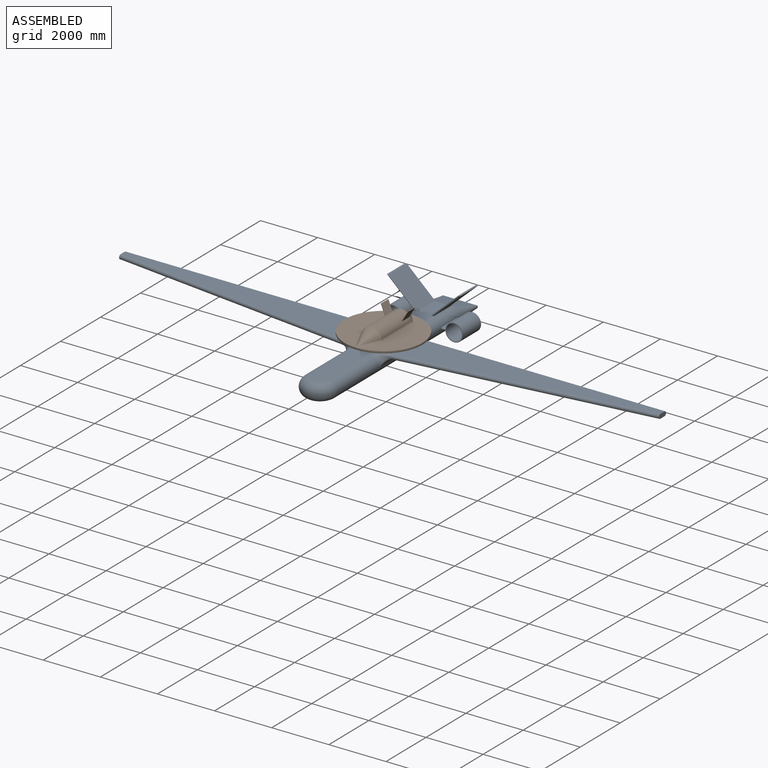
[diagram: assembled view]
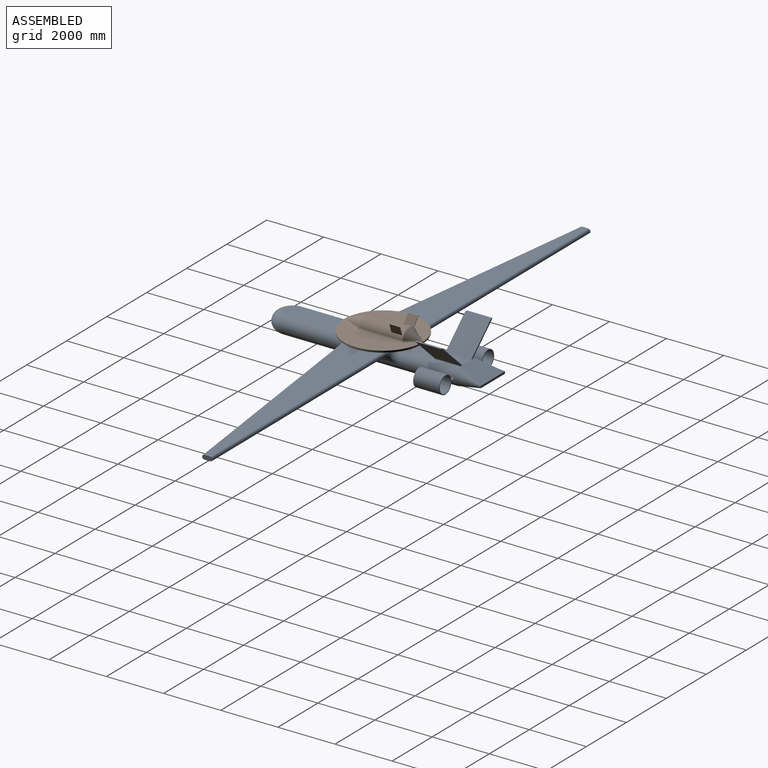
[diagram: assembled view, second angle]
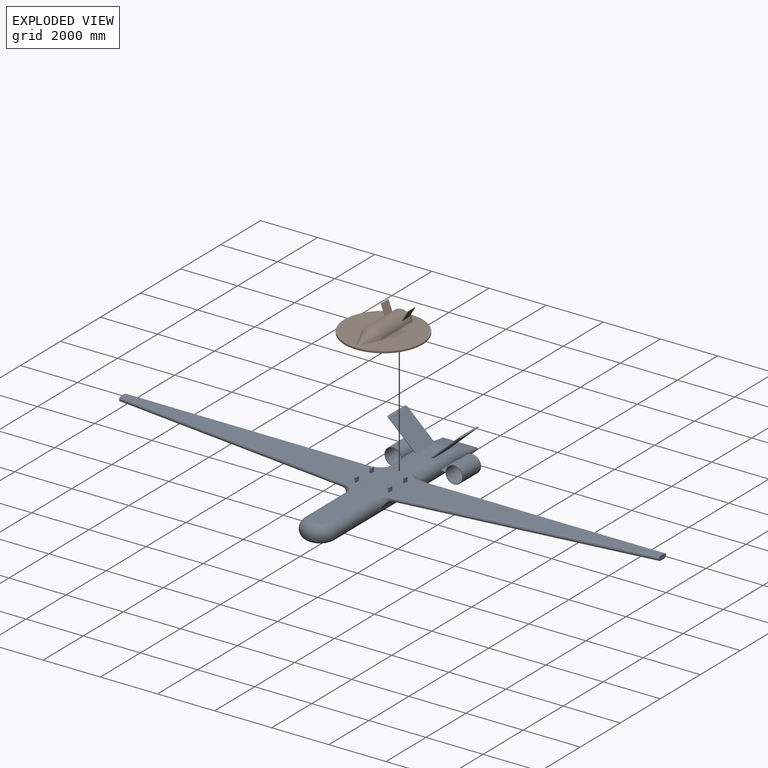
[diagram: exploded view]
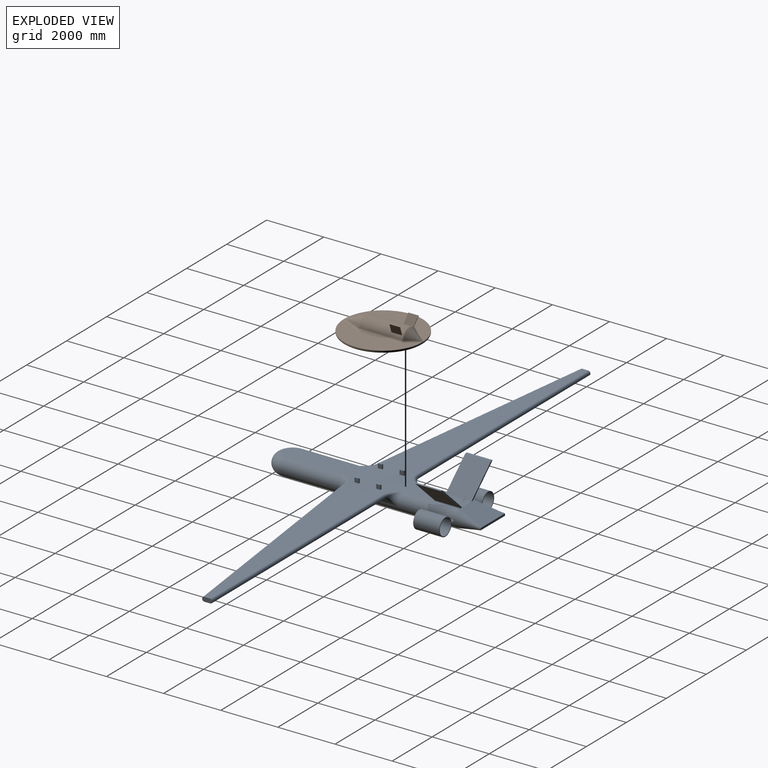
[diagram: exploded view, second angle]
ASSEMBLY  parts=2 mates=2
PART A: 108 faces, bbox 18996.2x7749.6x1675.7 mm
  f0: plane 18976.99x6480.19mm, normal (0,0,1), area 18372709.7mm2, adj f1,f3,f4,f8,f10,f14,f22,f23
  f1: cylinder r=304.8mm len=6096mm, axis (0,1,0), area 4557460.9mm2, adj f0,f2,f4,f17,f18,f21,f31,f60
  f2: plane 6400.8x609.6mm, normal (0,0,-1), area 3862053.4mm2, adj f1,f3,f4,f16
  f3: cylinder r=304.8mm len=6096mm, axis (0,1,0), area 4557460.9mm2, adj f0,f2,f4,f15,f19,f20,f30,f62
  f4: torus R=304.8mm, axis (0,0,-1), area 1500643.3mm2, adj f0,f1,f2,f3
  f5: plane 8553.76x1295.91mm, normal (0,0,-1), area 6431320.3mm2, adj f8,f18,f27,f38
  f6: plane 73.21x9.31mm, normal (-0.13,-0.99,0), area 164.5mm2, adj f21,f27,f28
  f7: plane 25.13x0.81mm, normal (0,1,0), area 6.8mm2, adj f31,f37,f38
  f8: plane 380.24x171.79mm, normal (-1,0,0), area 49989.3mm2, adj f0,f5,f27,f38
  f9: plane 8553.76x1295.91mm, normal (0,0,-1), area 6431320.3mm2, adj f10,f19,f23,f34
  f10: plane 380.24x171.79mm, normal (1,0,0), area 49989.3mm2, adj f0,f9,f23,f34
  f11: plane 25.13x0.81mm, normal (0,1,0), area 6.8mm2, adj f30,f33,f34
  f12: plane 73.21x9.31mm, normal (0.13,-0.99,0), area 164.5mm2, adj f20,f23,f24
  f13: plane 1219.2x76.2mm, normal (0,1,0), area 92781.8mm2, adj f14,f15,f16,f17
  f14: plane 1214.42x914.4mm, normal (0,0.28,0.96), area 868688.9mm2, adj f0,f13,f15,f17,f44,f46
  f15: bspline ~914.4x609.6mm, area 467651mm2, adj f3,f13,f14,f16,f46
  f16: plane 1214.42x914.4mm, normal (0,0.28,-0.96), area 868688.9mm2, adj f2,f13,f15,f17
  f17: bspline ~1097.85x716.93mm, area 472970mm2, adj f1,f13,f14,f16,f41,f61
  f18: cylinder r=304.8mm len=2060.98mm, axis (0,1,0), area 613045.1mm2, adj f1,f5,f28,f29,f36,f37
  f19: cylinder r=304.8mm len=2060.98mm, axis (0,1,0), area 613049.7mm2, adj f3,f9,f24,f25,f32,f33
  f20: bspline ~762x609.58mm, area 91514.2mm2, adj f3,f12,f22,f25
  f21: bspline ~762x609.58mm, area 91514.2mm2, adj f1,f6,f26,f29
  f22: bspline ~546.2x452.23mm, area 30834.6mm2, adj f0,f20,f23
  f23: cylinder r=76.2mm len=8636.58mm, axis (0.99,0.13,0), area 2073011.4mm2, adj f0,f9,f10,f12,f22,f24
  f24: bspline ~115.69x90.31mm, area 7440.4mm2, adj f12,f19,f23,f25
  f25: bspline ~376.89x299.81mm, area 22813.9mm2, adj f19,f20,f24
  f26: bspline ~546.2x452.23mm, area 2.7mm2, adj f0,f21,f27
  f27: cylinder r=76.2mm len=8636.58mm, axis (0.99,-0.13,0), area 2073011.4mm2, adj f0,f5,f6,f8,f26,f28
  f28: bspline ~84.57x81.48mm, area 7440.4mm2, adj f6,f18,f27,f29
  f29: bspline ~376.89x299.81mm, area 23138mm2, adj f18,f21,f28
  f30: torus R=609.6mm, axis (0,1,0), area 92781.5mm2, adj f3,f11,f32,f35
  f31: torus R=609.6mm, axis (0,-1,0), area 92781.5mm2, adj f1,f7,f36,f39
  f32: bspline ~381.02x304.01mm, area 26515.3mm2, adj f19,f30,f33
  f33: torus R=381mm, axis (0,1,0), area 2592.5mm2, adj f11,f19,f32,f34
  f34: cylinder r=76.2mm len=8578.89mm, axis (1,0,0), area 2050686.2mm2, adj f0,f9,f10,f11,f33,f35
  f35: bspline ~591.24x381mm, area 29856.4mm2, adj f0,f30,f34
  f36: bspline ~381.02x304.01mm, area 26515.3mm2, adj f18,f31,f37
  f37: torus R=381mm, axis (0,-1,0), area 2592.5mm2, adj f7,f18,f36,f38
  f38: cylinder r=76.2mm len=8578.89mm, axis (1,0,0), area 2050686.2mm2, adj f0,f5,f7,f8,f37,f39
  f39: bspline ~591.24x381mm, area 30781.8mm2, adj f0,f31,f38
  f40: plane 889x76.2mm, normal (0,0,1), area 67741.8mm2, adj f41,f43,f44,f54
  f41: plane 1003.24x927.04mm, normal (-0.68,0,-0.73), area 1152325mm2, adj f17,f40,f44,f53,f61
  f42: plane 936.87x863.6mm, normal (0,-1,0), area 1126.7mm2, adj f53,f54,f55,f58
  f43: plane 983.3x907.66mm, normal (0.68,0,0.73), area 1189646.1mm2, adj f40,f44,f55,f56
  f44: plane 1076.73x914.4mm, normal (0,1,0), area 69689.1mm2, adj f14,f40,f41,f43,f56
  f45: plane 889x76.2mm, normal (0,0,1), area 67741.8mm2, adj f46,f47,f49,f51
  f46: plane 1076.76x919.36mm, normal (0,1,0), area 70347.6mm2, adj f14,f15,f45,f47,f49,f62,f67
  f47: plane 983.3x907.66mm, normal (-0.68,0,0.73), area 1189646.1mm2, adj f45,f46,f50,f67
  f48: plane 936.87x863.6mm, normal (0,-1,0), area 1126.7mm2, adj f50,f51,f52,f65
  f49: plane 948.66x889mm, normal (0.68,0,-0.73), area 1147727.5mm2, adj f45,f46,f52,f62
  f50: cylinder r=25.4mm len=1000.53mm, axis (-0.73,0,-0.68), area 52095.2mm2, adj f47,f48,f51,f66
  f51: cylinder r=25.4mm len=76.2mm, axis (-1,0,0), area 1954.4mm2, adj f45,f48,f50,f52
  f52: cylinder r=25.4mm len=1000.53mm, axis (-0.73,0,-0.68), area 51200.6mm2, adj f48,f49,f51,f63,f64
  f53: cylinder r=25.4mm len=1000.53mm, axis (0.73,0,-0.68), area 51200.6mm2, adj f41,f42,f54,f59,f60
  f54: cylinder r=25.4mm len=76.2mm, axis (1,0,0), area 1954.4mm2, adj f40,f42,f53,f55
  f55: cylinder r=25.4mm len=1000.53mm, axis (0.73,0,-0.68), area 52095.2mm2, adj f42,f43,f54,f57
  f56: cylinder r=25.4mm len=889mm, axis (0,1,0), area 16832mm2, adj f0,f43,f44,f57
  f57: bspline ~87.91x50.8mm, area 2304.6mm2, adj f0,f55,f56,f58
  f58: cylinder r=25.4mm len=25.4mm, axis (-1,0,0), area 52.1mm2, adj f0,f42,f57,f59
  f59: bspline ~33.19x31.19mm, area 347.9mm2, adj f0,f53,f58,f60
  f60: bspline ~61.85x53.81mm, area 2885.4mm2, adj f1,f53,f59,f61
  f61: cylinder r=25.4mm len=889mm, axis (0,1,0), area 45059.9mm2, adj f1,f17,f41,f60
  f62: cylinder r=25.4mm len=889mm, axis (0,1,0), area 50038.5mm2, adj f3,f46,f49,f63
  f63: bspline ~61.85x53.81mm, area 2885.4mm2, adj f3,f52,f62,f64
  f64: bspline ~33.19x31.19mm, area 347.9mm2, adj f0,f52,f63,f65
  f65: cylinder r=25.4mm len=25.4mm, axis (1,0,0), area 52.1mm2, adj f0,f48,f64,f66
  f66: bspline ~87.91x50.8mm, area 2304.6mm2, adj f0,f50,f65,f67
  f67: cylinder r=25.4mm len=889mm, axis (0,1,0), area 16832mm2, adj f0,f46,f47,f66
  f68: plane 152.4x50.8mm, normal (0,1,0), area 7741.9mm2, adj f0,f69,f71,f72
  f69: plane 152.4x152.4mm, normal (-1,0,0), area 23225.8mm2, adj f0,f68,f70,f72
  f70: plane 152.4x50.8mm, normal (0,-1,0), area 7741.9mm2, adj f0,f69,f71,f72
  f71: plane 152.4x152.4mm, normal (1,0,0), area 23225.8mm2, adj f0,f68,f70,f72
  f72: plane 152.4x50.8mm, normal (0,0,1), area 7741.9mm2, adj f68,f69,f70,f71
  f73: plane 152.4x50.8mm, normal (0,1,0), area 7741.9mm2, adj f0,f74,f76,f77
  f74: plane 152.4x152.4mm, normal (-1,0,0), area 23225.8mm2, adj f0,f73,f75,f77
  f75: plane 152.4x50.8mm, normal (0,-1,0), area 7741.9mm2, adj f0,f74,f76,f77
  f76: plane 152.4x152.4mm, normal (1,0,0), area 23225.8mm2, adj f0,f73,f75,f77
  f77: plane 152.4x50.8mm, normal (0,0,1), area 7741.9mm2, adj f73,f74,f75,f76
  f78: plane 152.4x50.8mm, normal (0,1,0), area 7741.9mm2, adj f0,f79,f81,f82
  f79: plane 152.4x152.4mm, normal (-1,0,0), area 23225.8mm2, adj f0,f78,f80,f82
  f80: plane 152.4x50.8mm, normal (0,-1,0), area 7741.9mm2, adj f0,f79,f81,f82
  f81: plane 152.4x152.4mm, normal (1,0,0), area 23225.8mm2, adj f0,f78,f80,f82
  f82: plane 152.4x50.8mm, normal (0,0,1), area 7741.9mm2, adj f78,f79,f80,f81
  f83: plane 152.4x50.8mm, normal (0,1,0), area 7741.9mm2, adj f0,f84,f86,f87
  f84: plane 152.4x152.4mm, normal (-1,0,0), area 23225.8mm2, adj f0,f83,f85,f87
  f85: plane 152.4x50.8mm, normal (0,-1,0), area 7741.9mm2, adj f0,f84,f86,f87
  f86: plane 152.4x152.4mm, normal (1,0,0), area 23225.8mm2, adj f0,f83,f85,f87
  f87: plane 152.4x50.8mm, normal (0,0,1), area 7741.9mm2, adj f83,f84,f85,f86
  f88: cylinder r=279.4mm len=914.4mm, axis (0,1,0), area 1605249.3mm2, adj f89,f90
  f89: plane 609.6x609.6mm, normal (0,1,0), area 46617.1mm2, adj f88,f91
  f90: plane 609.6x609.6mm, normal (0,-1,0), area 46617.1mm2, adj f88,f91
  f91: cylinder r=304.8mm len=914.4mm, axis (0,1,0), area 1687922.7mm2, adj f89,f90,f92,f93,f94,f95,f96,f97
  f92: cylinder r=76.2mm len=157.18mm, axis (-1,0,0), area 12351.7mm2, adj f3,f91,f93,f97
  f93: cylinder r=76.2mm len=157.18mm, axis (1,0,0), area 12351.7mm2, adj f3,f91,f92,f96
  f94: cylinder r=76.2mm len=157.18mm, axis (1,0,0), area 12351.7mm2, adj f3,f91,f95,f97
  f95: cylinder r=76.2mm len=157.18mm, axis (-1,0,0), area 12351.7mm2, adj f3,f91,f94,f96
  f96: plane 762x157.18mm, normal (0,0,-1), area 119772.1mm2, adj f3,f91,f93,f95
  f97: plane 762x157.18mm, normal (0,0,1), area 119772.1mm2, adj f3,f91,f92,f94
  f98: plane 762x157.18mm, normal (0,0,1), area 119772.1mm2, adj f1,f101,f103,f105
  f99: plane 762x157.18mm, normal (0,0,-1), area 119772.1mm2, adj f1,f100,f102,f105
  f100: cylinder r=76.2mm len=157.18mm, axis (-1,0,0), area 12351.7mm2, adj f1,f99,f101,f105
  f101: cylinder r=76.2mm len=157.18mm, axis (1,0,0), area 12351.7mm2, adj f1,f98,f100,f105
  f102: cylinder r=76.2mm len=157.18mm, axis (1,0,0), area 12351.7mm2, adj f1,f99,f103,f105
  f103: cylinder r=76.2mm len=157.18mm, axis (-1,0,0), area 12351.7mm2, adj f1,f98,f102,f105
  f104: cylinder r=279.4mm len=914.4mm, axis (0,1,0), area 1605249.3mm2, adj f106,f107
  f105: cylinder r=304.8mm len=914.4mm, axis (0,1,0), area 1687922.7mm2, adj f98,f99,f100,f101,f102,f103,f106,f107
  f106: plane 609.6x609.6mm, normal (0,-1,0), area 46617.1mm2, adj f104,f105
  f107: plane 609.6x609.6mm, normal (0,1,0), area 46617.1mm2, adj f104,f105
PART B: 28 faces, bbox 2969.3x2969.3x609.6 mm
  f0: plane 2741.4x1335.54mm, normal (0,0,1), area 2000377.1mm2, adj f1,f7,f9,f14,f15,f16
  f1: cylinder r=1371.6mm len=2743.2mm, axis (0,0,-1), area 328346.4mm2, adj f0,f2,f7,f9,f17
  f2: plane 2741.39x1335.53mm, normal (0,0,1), area 2000375.5mm2, adj f1,f7,f9,f11,f12,f13
  f3: plane 2667x2667mm, normal (0,0,-1), area 5586450mm2, adj f17
  f4: cone r=0mm half-angle=37.9deg, axis (0,1,0), area 237091.2mm2, adj f9,f10
  f5: cone r=355.6mm half-angle=25deg, axis (0,-1,0), area 368066mm2, adj f7,f8
  f6: cylinder r=355.6mm len=1480.95mm, axis (0,1,0), area 1449829.6mm2, adj f8,f10,f12,f15,f18,f19,f21,f22
  f7: bspline ~855.29x810.13mm, area 150599.1mm2, adj f0,f1,f2,f5,f13,f16
  f8: torus R=279.4mm, axis (0,-1,0), area 32676.7mm2, adj f5,f6,f13,f16
  f9: bspline ~845.72x509.21mm, area 104104.4mm2, adj f0,f1,f2,f4,f11,f14
  f10: torus R=279.4mm, axis (0,-1,0), area 48902.8mm2, adj f4,f6,f11,f14
  f11: bspline ~112.98x93.24mm, area 7551.4mm2, adj f2,f9,f10,f12
  f12: cylinder r=76.2mm len=1480.95mm, axis (0,1,0), area 157242.6mm2, adj f2,f6,f11,f13
  f13: bspline ~90.33x85.8mm, area 4962.9mm2, adj f2,f7,f8,f12
  f14: bspline ~109.33x96.46mm, area 7551.4mm2, adj f0,f9,f10,f15
  f15: cylinder r=76.2mm len=1480.95mm, axis (0,1,0), area 157242.6mm2, adj f0,f6,f14,f16
  f16: bspline ~85.69x80.74mm, area 4962.8mm2, adj f0,f7,f8,f15
  f17: torus R=1333.5mm, axis (0,0,1), area 510559.3mm2, adj f1,f3
  f18: plane 413.57x340.02mm, normal (-0.88,0,-0.48), area 137509.9mm2, adj f6,f20,f21,f22
  f19: plane 410.08x319.55mm, normal (0.88,0,0.48), area 129230.8mm2, adj f6,f20,f21,f22
  f20: plane 355.6x25.4mm, normal (0,0,1), area 9032.2mm2, adj f18,f19,f21,f22
  f21: plane 340.06x198.53mm, normal (0,0.99,0.17), area 8493.7mm2, adj f6,f18,f19,f20
  f22: plane 340.06x198.53mm, normal (0,-0.99,-0.17), area 8493.7mm2, adj f6,f18,f19,f20
  f23: plane 413.57x340.02mm, normal (0.88,0,-0.48), area 137509.9mm2, adj f6,f25,f26,f27
  f24: plane 410.08x319.55mm, normal (-0.88,0,0.48), area 129230.8mm2, adj f6,f25,f26,f27
  f25: plane 355.6x25.4mm, normal (0,0,1), area 9032.2mm2, adj f23,f24,f26,f27
  f26: plane 340.06x198.53mm, normal (0,-0.99,-0.17), area 8493.7mm2, adj f6,f23,f24,f25
  f27: plane 340.06x198.53mm, normal (0,0.99,0.17), area 8493.7mm2, adj f6,f23,f24,f25
PLACE A t=(-178.25,2897.75,-140.7)mm
PLACE B rot(axis=(0,0,1),180deg) t=(126.55,-24.56,316.5)mm
MATE planar B.f1 <-> A.f87  axis (0,0,-1) through (126.55,-24.56,316.5)mm
MATE cylindrical B.f1 <-> A.f0  axis (0,0,1) through (126.55,-24.56,392.7)mm
